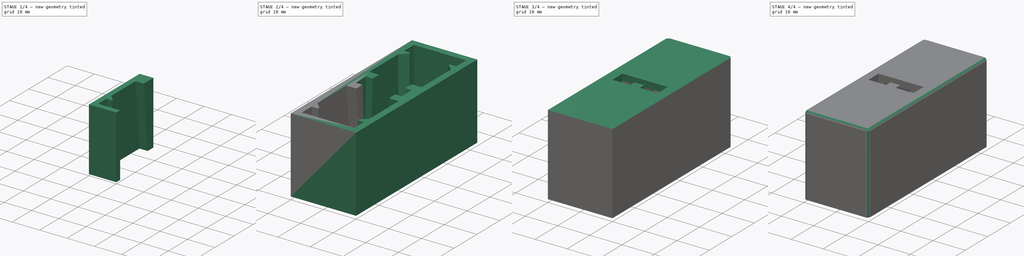
[diagram: build sequence overview — one tinted view per stage of 4, left to right]
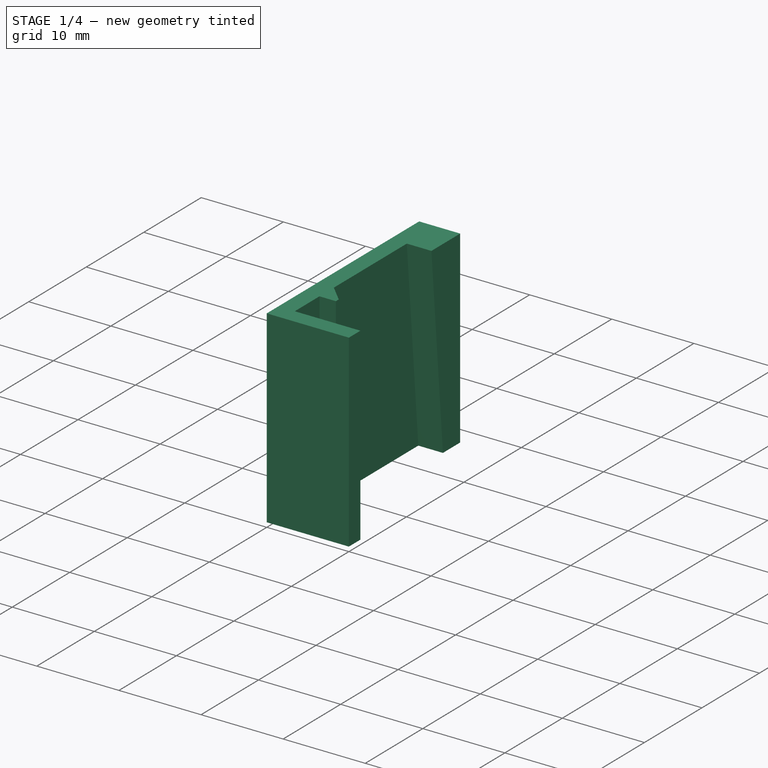
[diagram: stage 1 of 4 — iso view after this stage's code; geometry added in this stage tinted green]
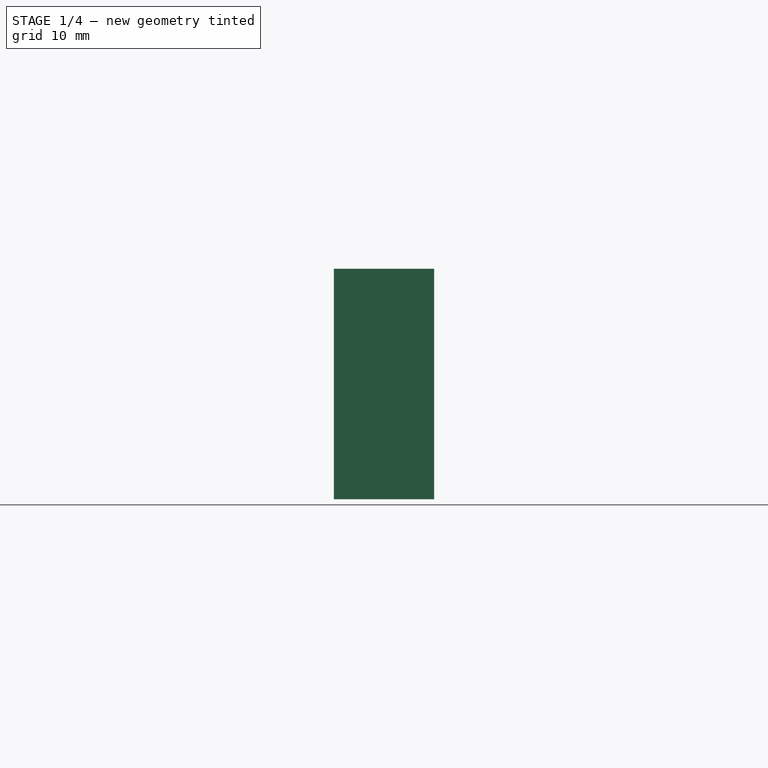
[diagram: stage 1 of 4 — front view after this stage's code; geometry added in this stage tinted green]
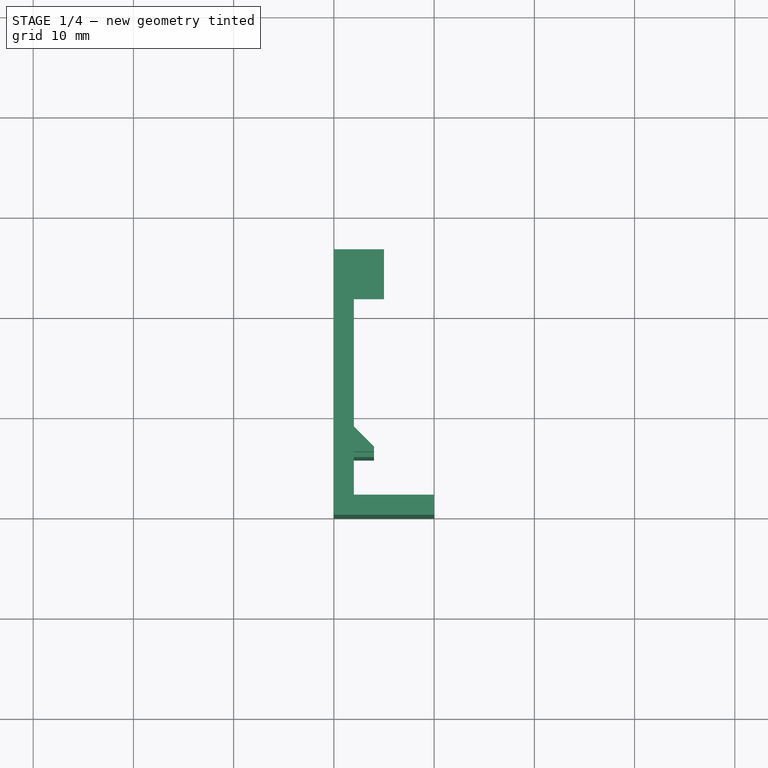
[diagram: stage 1 of 4 — top view after this stage's code; geometry added in this stage tinted green]
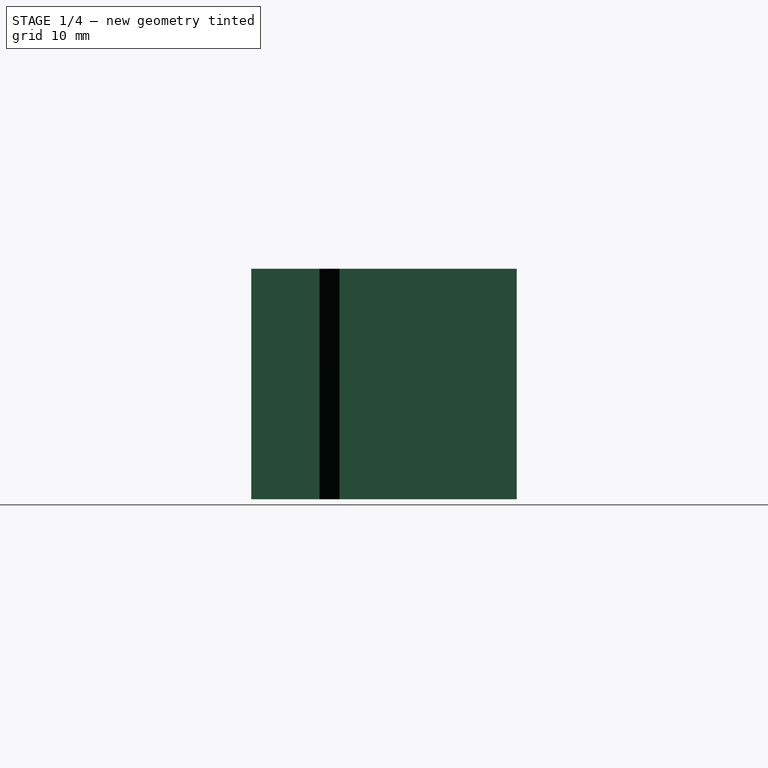
[diagram: stage 1 of 4 — right view after this stage's code; geometry added in this stage tinted green]
FCSTD DOCUMENT  (FreeCAD 1.0R39109 (Git))
Label: JumpModv4
License: All rights reserved
LicenseURL: http://en.wikipedia.org/wiki/All_rights_reserved
objects: Sketcher::SketchObject×6, PartDesign::Fillet×5, PartDesign::Pad×4, PartDesign::Pocket×2, PartDesign::Mirrored×2, PartDesign::Plane×1, PartDesign::Body×1
note: 51 computed .brp shape members not serialized (recipe doc carries the construction recipe); baked Part::Feature solids carry a one-line shape summary decoded from their .brp

FEATURE [Sketcher::SketchObject] Sketch
  ArcFitTolerance = 1e-06
  AttachmentSupport = -> [XY_Plane]
  FullyConstrained = true
  MakeInternals = false
  MapMode = 5
  sketch-geometry (10):
    g0: LineSegment StartX=0 StartY=0 StartZ=0 EndX=-10 EndY=0 EndZ=0
    g1: LineSegment StartX=-10 StartY=0 StartZ=0 EndX=-10 EndY=26.5 EndZ=0
    g2: LineSegment StartX=-8 StartY=8.81 StartZ=0 EndX=-6 EndY=6.81 EndZ=0
    g3: LineSegment StartX=-6 StartY=6.81 StartZ=0 EndX=-6 EndY=5.81 EndZ=0
    g4: LineSegment StartX=-6 StartY=5.81 StartZ=0 EndX=-8 EndY=5.81 EndZ=0
    g5: LineSegment StartX=-8 StartY=5.81 StartZ=0 EndX=-8 EndY=2.01 EndZ=0
    g6: LineSegment StartX=-8 StartY=2.01 StartZ=0 EndX=0 EndY=2.01 EndZ=0
    g7: LineSegment StartX=0 StartY=2.01 StartZ=0 EndX=0 EndY=0 EndZ=0
    g8: LineSegment StartX=-10 StartY=26.5 StartZ=0 EndX=-8 EndY=26.5 EndZ=0
    g9: LineSegment StartX=-8 StartY=8.81 StartZ=0 EndX=-8 EndY=26.5 EndZ=0
  constraints (29):
    c: Coincident(g0,g-1)
    c: PointOnObject(g0,g-1)
    c: Coincident(g1,g0)
    c: Vertical(g1)
    c: Coincident(g3,g2)
    c: Vertical(g3)
    c: Coincident(g4,g3)
    c: Coincident(g6,g5)
    c: DistanceY(g0,g1) = 26.5
    c: DistanceY(g5,g4) = 3.8
    c: DistanceY(g3,g3) = 1
    c: DistanceY(g4,g2) = 3
    c: DistanceX(g2,g2) = 2
    c: DistanceX(g0,g5) = 2
    c: Coincident(g4,g5)
    c: Parallel(g5,g1)
    c: Parallel(g6,g0)
    c: DistanceX(g0,g0) = 10
    c: Coincident(g7,g0)
    c: Coincident(g6,g7)
    c: PointOnObject(g6,g-2)
    c: Horizontal(g4)
    c: Horizontal(g8)
    c: Coincident(g8,g1)
    c: Distance(g8,g8) = 2
    c: Coincident(g9,g2)
    c: Coincident(g9,g8)
    c: Vertical(g9)
    c: DistanceY(g9,g9) = 17.69
FEATURE [PartDesign::Pad] Pad
  Direction = (0,0,1)
  Length = 23
  Length2 = 10
  Profile = -> Sketch
  ReferenceAxis = -> Sketch [N_Axis]
  Suppressed = false
  Type = 0
FEATURE [Sketcher::SketchObject] Sketch001
  ArcFitTolerance = 1e-06
  AttachmentSupport = -> [Pad]
  FullyConstrained = true
  MakeInternals = false
  MapMode = 5
  Placement = pos=(0,0,23) rot=(0,0,1;0rad)
  sketch-geometry (4):
    g0: LineSegment StartX=-6 StartY=5.81 StartZ=0 EndX=-6 EndY=6.31 EndZ=0
    g1: LineSegment StartX=-6 StartY=6.31 StartZ=0 EndX=-8 EndY=6.31 EndZ=0
    g2: LineSegment StartX=-8 StartY=6.31 StartZ=0 EndX=-8 EndY=5.81 EndZ=0
    g3: LineSegment StartX=-8 StartY=5.81 StartZ=0 EndX=-6 EndY=5.81 EndZ=0
  constraints (11):
    c: Coincident(g0,g1)
    c: Coincident(g1,g2)
    c: Coincident(g2,g3)
    c: Coincident(g3,g0)
    c: Vertical(g0)
    c: Vertical(g2)
    c: Horizontal(g1)
    c: Horizontal(g3)
    c: Coincident(g0,g-4)
    c: DistanceX(g3,g3) = 2
    c: Distance(g0,g0) = 0.5
FEATURE [PartDesign::Pocket] Pocket
  BaseFeature = -> Pad
  Direction = (0,0,-1)
  Length = 3
  Length2 = 5
  Profile = -> Sketch001
  ReferenceAxis = -> Sketch001 [N_Axis]
  Refine = true
  Suppressed = false
  Type = 0
FEATURE [Sketcher::SketchObject] Sketch002
  ArcFitTolerance = 1e-06
  AttachmentSupport = -> [Pocket]
  ExternalGeometry = -> [Pocket]
  FullyConstrained = true
  MakeInternals = false
  MapMode = 5
  Placement = pos=(-8,0,0) rot=(0.57735,0.57735,0.57735;2.0944rad)
  sketch-geometry (4):
    g0: LineSegment StartX=26.5 StartY=0 StartZ=0 EndX=23.5 EndY=0 EndZ=0
    g1: LineSegment StartX=23.5 StartY=0 StartZ=0 EndX=21.5 EndY=23 EndZ=0
    g2: LineSegment StartX=21.5 StartY=23 StartZ=0 EndX=26.5 EndY=23 EndZ=0
    g3: LineSegment StartX=26.5 StartY=23 StartZ=0 EndX=26.5 EndY=0 EndZ=0
  constraints (10):
    c: PointOnObject(g0,g-1)
    c: Coincident(g0,g1)
    c: Coincident(g1,g2)
    c: Horizontal(g2)
    c: Coincident(g2,g3)
    c: Coincident(g3,g0)
    c: Distance(g0,g0) = 3
    c: Distance(g2,g2) = 5
    c: Coincident(g0,g-3)
    c: Coincident(g2,g-3)
FEATURE [PartDesign::Pad] Pad001
  BaseFeature = -> Pocket
  Direction = (1,0,0)
  Length = 3
  Length2 = 10
  Profile = -> Sketch002
  ReferenceAxis = -> Sketch002 [N_Axis]
  Refine = true
  Suppressed = false
  Type = 0
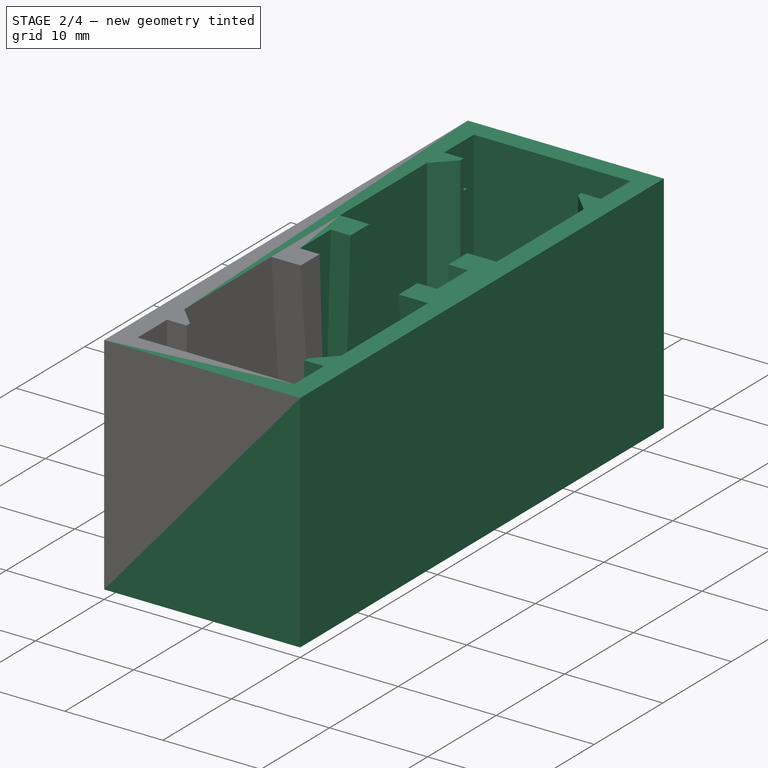
[diagram: stage 2 of 4 — iso view after this stage's code; geometry added in this stage tinted green]
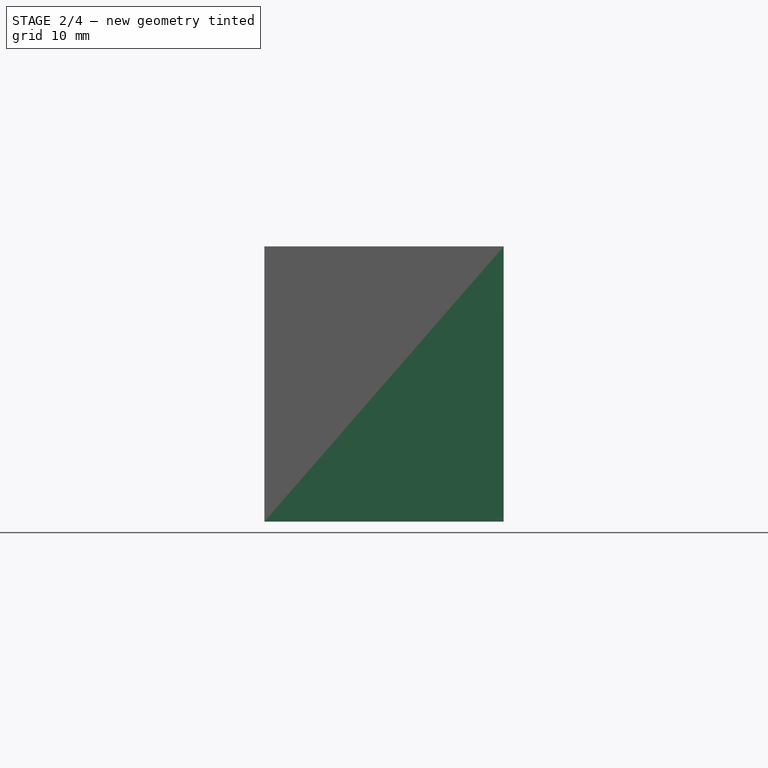
[diagram: stage 2 of 4 — front view after this stage's code; geometry added in this stage tinted green]
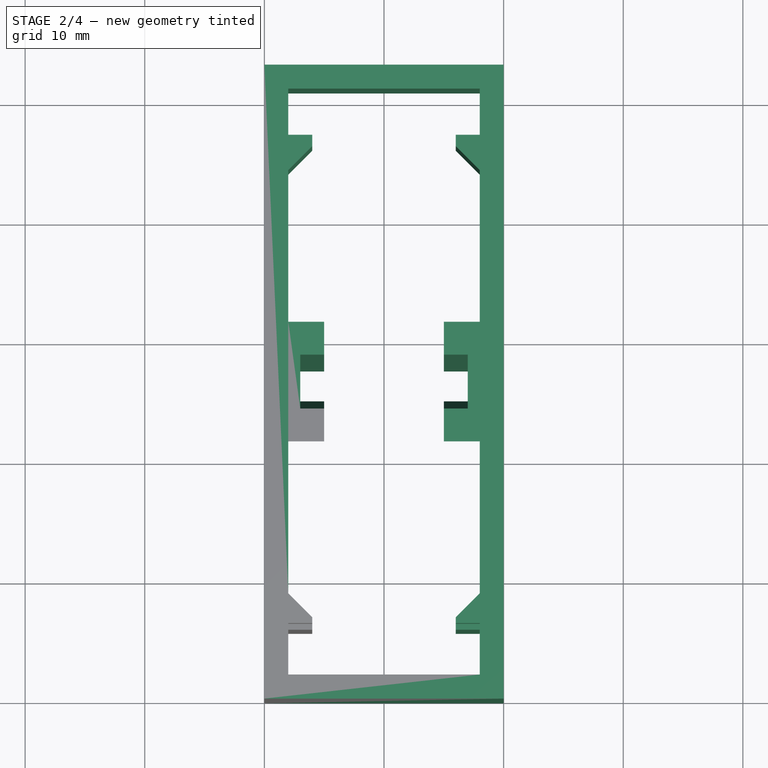
[diagram: stage 2 of 4 — top view after this stage's code; geometry added in this stage tinted green]
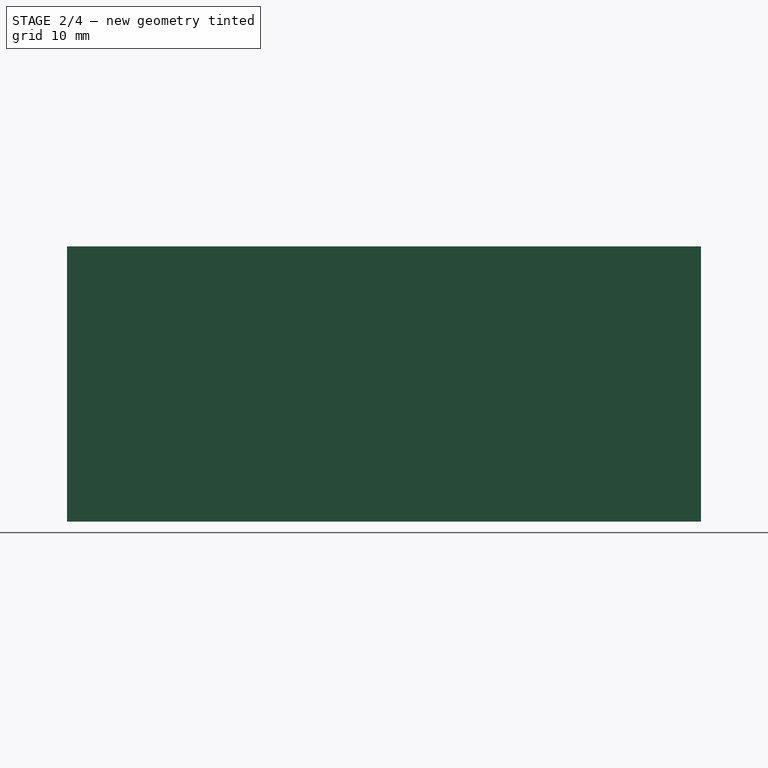
[diagram: stage 2 of 4 — right view after this stage's code; geometry added in this stage tinted green]
FEATURE [Sketcher::SketchObject] Sketch003
  ArcFitTolerance = 1e-06
  AttachmentSupport = -> [Pad001]
  ExternalGeometry = -> [Pad001]
  FullyConstrained = true
  MakeInternals = false
  MapMode = 5
  Placement = pos=(-5,0,0) rot=(0.57735,0.57735,0.57735;2.0944rad)
  sketch-geometry (4):
    g0: LineSegment StartX=26.5 StartY=0 StartZ=0 EndX=25.25 EndY=0 EndZ=0
    g1: LineSegment StartX=25.25 StartY=0 StartZ=0 EndX=24.25 EndY=23 EndZ=0
    g2: LineSegment StartX=24.25 StartY=23 StartZ=0 EndX=26.5 EndY=23 EndZ=0
    g3: LineSegment StartX=26.5 StartY=23 StartZ=0 EndX=26.5 EndY=0 EndZ=0
  constraints (10):
    c: Coincident(g-3,g0)
    c: PointOnObject(g0,g-1)
    c: Coincident(g0,g1)
    c: PointOnObject(g1,g-4)
    c: Coincident(g1,g2)
    c: Coincident(g2,g-4)
    c: Coincident(g2,g3)
    c: Coincident(g3,g0)
    c: Distance(g0,g0) = 1.25
    c: Distance(g2,g2) = 2.25
FEATURE [PartDesign::Pocket] Pocket001
  BaseFeature = -> Pad001
  Direction = (-1,0,0)
  Length = 2
  Length2 = 5
  Profile = -> Sketch003
  ReferenceAxis = -> Sketch003 [N_Axis]
  Refine = true
  Suppressed = false
  Type = 0
FEATURE [PartDesign::Mirrored] Mirrored
  BaseFeature = -> Pocket001
  MirrorPlane = -> YZ_Plane
  Originals = -> [Pocket001]
  Refine = true
  Suppressed = false
  TransformMode = 1
FEATURE [PartDesign::Plane] DatumPlane
  AttachmentSupport = -> [Mirrored]
  Length = 60
  MapMode = 5
  Placement = pos=(0,26.5,0) rot=(0,0.707107,0.707107;3.14159rad)
  ResizeMode = 0
  Width = 60
FEATURE [PartDesign::Mirrored] Mirrored001
  BaseFeature = -> Mirrored
  MirrorPlane = -> DatumPlane
  Originals = -> [Mirrored]
  Refine = true
  Suppressed = false
  TransformMode = 1
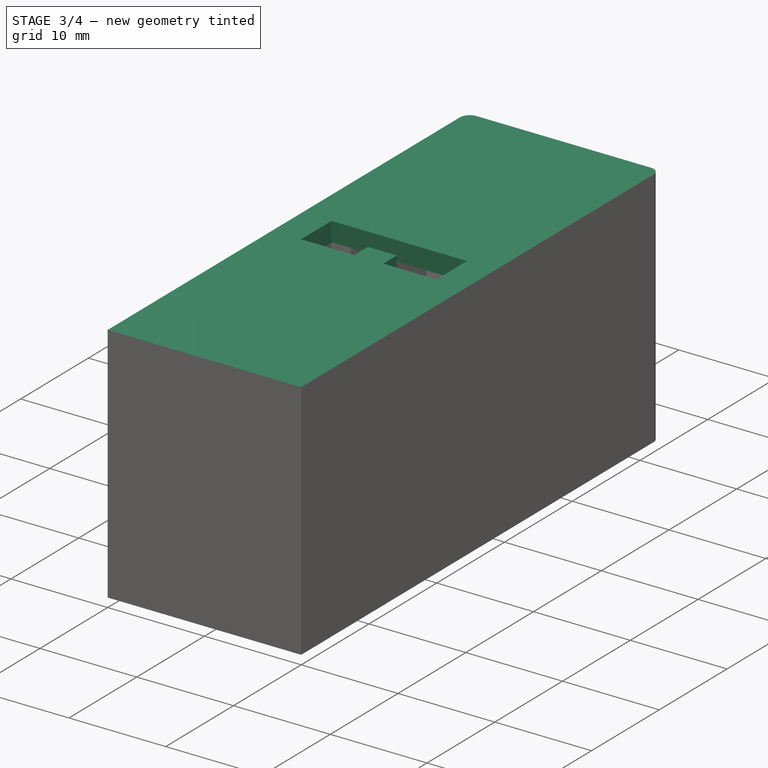
[diagram: stage 3 of 4 — iso view after this stage's code; geometry added in this stage tinted green]
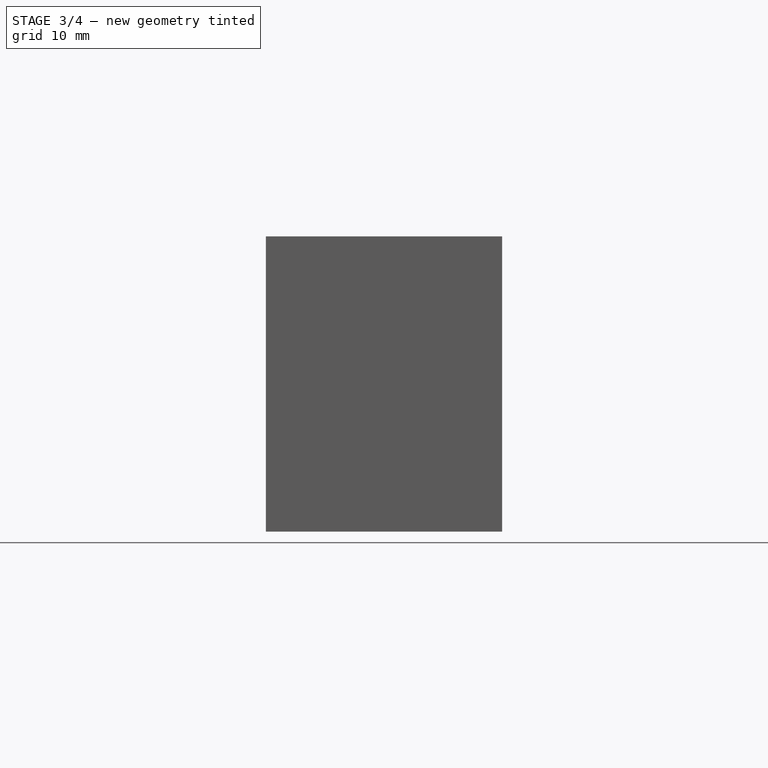
[diagram: stage 3 of 4 — front view after this stage's code; geometry added in this stage tinted green]
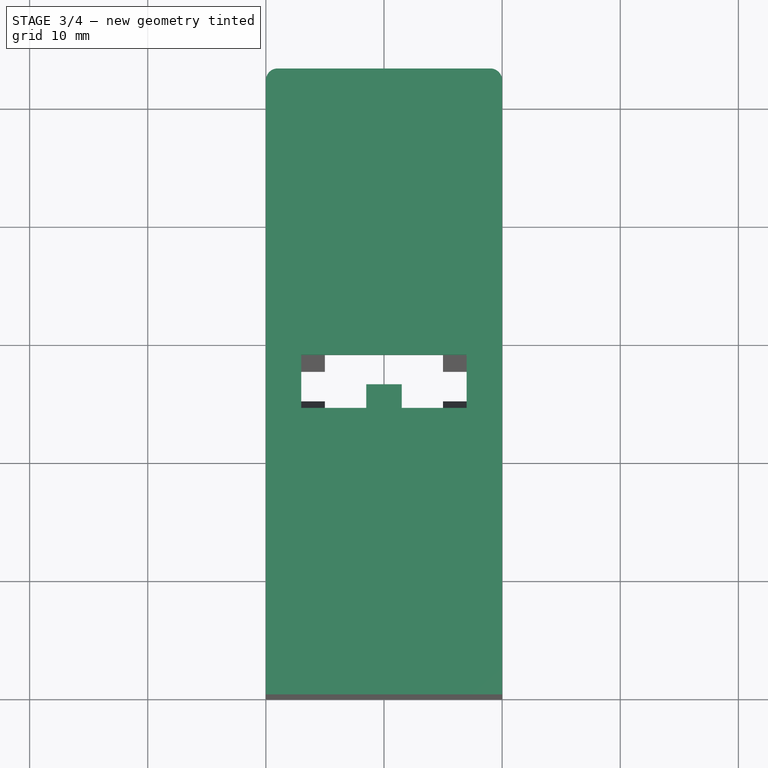
[diagram: stage 3 of 4 — top view after this stage's code; geometry added in this stage tinted green]
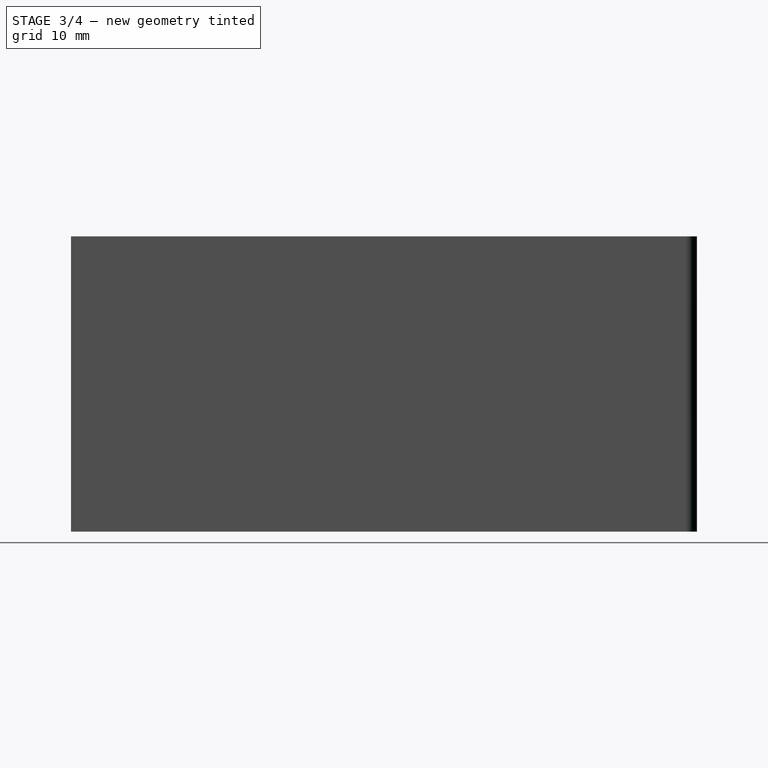
[diagram: stage 3 of 4 — right view after this stage's code; geometry added in this stage tinted green]
FEATURE [Sketcher::SketchObject] Sketch004
  ArcFitTolerance = 1e-06
  AttachmentSupport = -> [Mirrored001]
  FullyConstrained = true
  MakeInternals = false
  MapMode = 5
  Placement = pos=(0,0,23) rot=(0,0,1;0rad)
  sketch-geometry (8):
    g0: LineSegment StartX=-10 StartY=0 StartZ=0 EndX=10 EndY=0 EndZ=0
    g1: LineSegment StartX=10 StartY=0 StartZ=0 EndX=10 EndY=53 EndZ=0
    g2: LineSegment StartX=10 StartY=53 StartZ=0 EndX=-10 EndY=53 EndZ=0
    g3: LineSegment StartX=-10 StartY=53 StartZ=0 EndX=-10 EndY=0 EndZ=0
    g4: LineSegment StartX=-7 StartY=24.26 StartZ=0 EndX=7 EndY=24.26 EndZ=0
    g5: LineSegment StartX=7 StartY=24.26 StartZ=0 EndX=7 EndY=28.76 EndZ=0
    g6: LineSegment StartX=7 StartY=28.76 StartZ=0 EndX=-7 EndY=28.76 EndZ=0
    g7: LineSegment StartX=-7 StartY=28.76 StartZ=0 EndX=-7 EndY=24.26 EndZ=0
  constraints (22):
    c: Coincident(g0,g1)
    c: Coincident(g1,g2)
    c: Coincident(g2,g3)
    c: Coincident(g3,g0)
    c: Horizontal(g2)
    c: Vertical(g1)
    c: Vertical(g3)
    c: PointOnObject(g0,g-1)
    c: DistanceY(g3,g3) = 53
    c: DistanceX(g2,g2) = 20
    c: Symmetric(g0,g0,g-2)
    c: Coincident(g4,g5)
    c: Coincident(g5,g6)
    c: Coincident(g6,g7)
    c: Coincident(g7,g4)
    c: Horizontal(g4)
    c: Vertical(g5)
    c: Vertical(g7)
    c: Distance(g7,g7) = 4.5
    c: Distance(g4,g4) = 14
    c: Distance(g0,g4) = 24.26
    c: Symmetric(g6,g5,g-2)
FEATURE [PartDesign::Pad] Pad002
  BaseFeature = -> Mirrored001
  Direction = (0,0,1)
  Length = 2
  Length2 = 10
  Profile = -> Sketch004
  ReferenceAxis = -> Sketch004 [N_Axis]
  Refine = true
  Suppressed = false
  Type = 0
FEATURE [Sketcher::SketchObject] Sketch005
  ArcFitTolerance = 1e-06
  AttachmentSupport = -> [Pad002]
  ExternalGeometry = -> [Pad002]
  FullyConstrained = true
  MakeInternals = false
  MapMode = 5
  Placement = pos=(0,0,25) rot=(0,0,1;0rad)
  sketch-geometry (4):
    g0: LineSegment StartX=-1.5 StartY=26.26 StartZ=0 EndX=-1.5 EndY=21.26 EndZ=0
    g1: LineSegment StartX=-1.5 StartY=21.26 StartZ=0 EndX=1.5 EndY=21.26 EndZ=0
    g2: LineSegment StartX=1.5 StartY=21.26 StartZ=0 EndX=1.5 EndY=26.26 EndZ=0
    g3: LineSegment StartX=1.5 StartY=26.26 StartZ=0 EndX=-1.5 EndY=26.26 EndZ=0
  constraints (11):
    c: Coincident(g0,g1)
    c: Coincident(g1,g2)
    c: Coincident(g2,g3)
    c: Coincident(g3,g0)
    c: Vertical(g0)
    c: Vertical(g2)
    c: Horizontal(g1)
    c: Distance(g2,g2) = 5
    c: Distance(g3,g3) = 3
    c: Symmetric(g0,g2,g-2)
    c: Distance(g-3,g3) = 2
FEATURE [PartDesign::Pad] Pad003
  BaseFeature = -> Pad002
  Direction = (0,0,1)
  Length = 3
  Length2 = 10
  Profile = -> Sketch005
  ReferenceAxis = -> Sketch005 [N_Axis]
  Refine = true
  Reversed = true
  Suppressed = false
  Type = 0
FEATURE [PartDesign::Fillet] Fillet
  Base = -> Pad003 [Edge45]
  BaseFeature = -> Pad003
  Radius = 1
  Refine = true
  SupportTransform = false
  Suppressed = false
  UseAllEdges = false
FEATURE [PartDesign::Fillet] Fillet001
  Base = -> Fillet [Edge50]
  BaseFeature = -> Fillet
  Radius = 1
  Refine = true
  SupportTransform = false
  Suppressed = false
  UseAllEdges = false
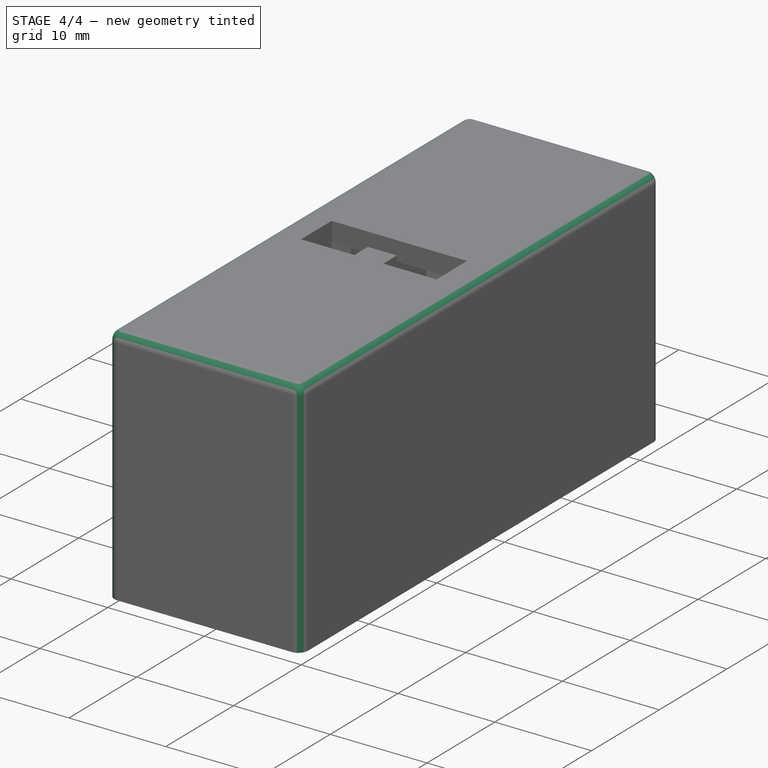
[diagram: stage 4 of 4 — iso view after this stage's code; geometry added in this stage tinted green]
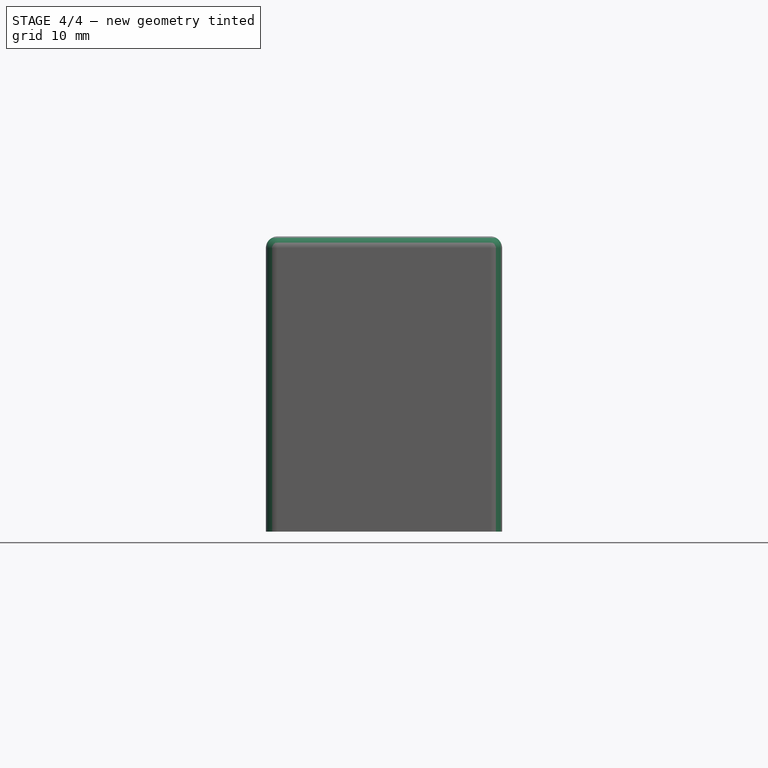
[diagram: stage 4 of 4 — front view after this stage's code; geometry added in this stage tinted green]
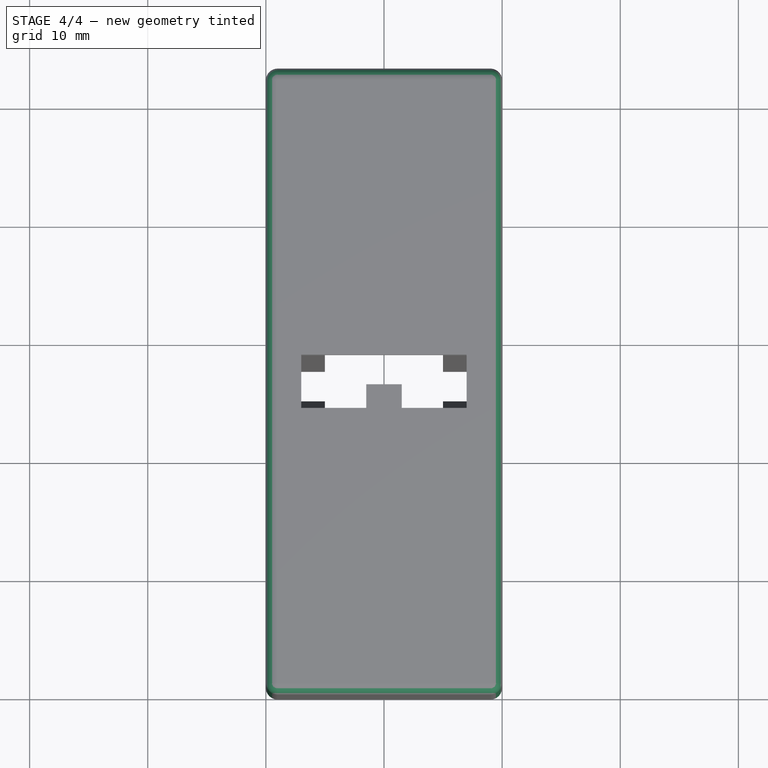
[diagram: stage 4 of 4 — top view after this stage's code; geometry added in this stage tinted green]
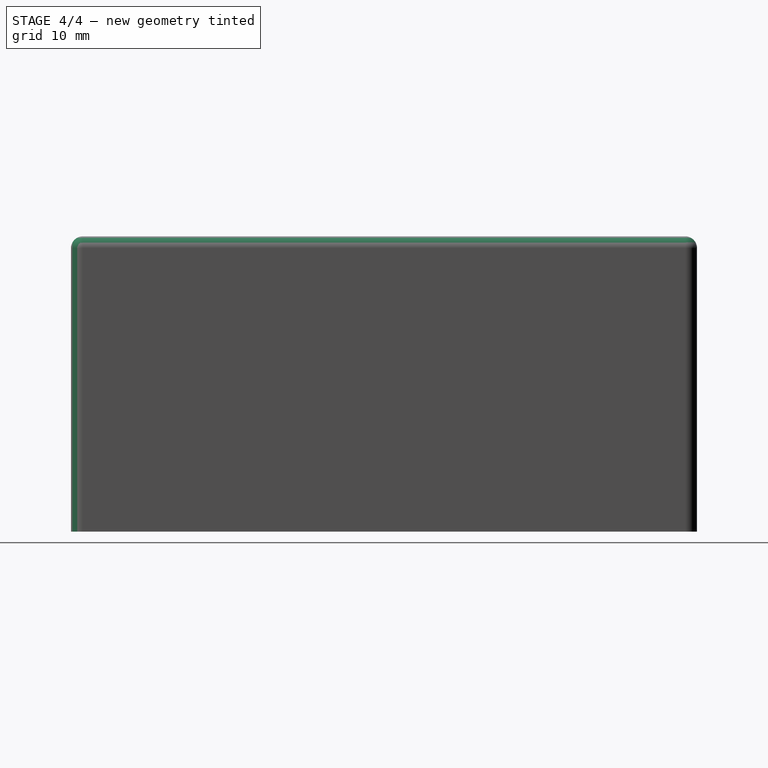
[diagram: stage 4 of 4 — right view after this stage's code; geometry added in this stage tinted green]
FEATURE [PartDesign::Fillet] Fillet002
  Base = -> Fillet001 [Edge50]
  BaseFeature = -> Fillet001
  Radius = 1
  Refine = true
  SupportTransform = false
  Suppressed = false
  UseAllEdges = false
FEATURE [PartDesign::Fillet] Fillet003
  Base = -> Fillet002 [Edge51]
  BaseFeature = -> Fillet002
  Radius = 1
  Refine = true
  SupportTransform = false
  Suppressed = false
  UseAllEdges = false
FEATURE [PartDesign::Fillet] Fillet004
  Base = -> Fillet003 [Edge55]
  BaseFeature = -> Fillet003
  Radius = 1
  Refine = true
  SupportTransform = false
  Suppressed = false
  UseAllEdges = false
FEATURE [PartDesign::Body] Body
  AllowCompound = false
  Group = -> [Sketch,Pad,Sketch001,Pocket,Sketch002,Pad001,Sketch003,Pocket001,Mirrored,DatumPlane,Mirrored001,Sketch004,Pad002,Sketch005,Pad003,Fillet,Fillet001,Fillet002,Fillet003,Fillet004]
  Origin = -> Origin
  Tip = -> Fillet004
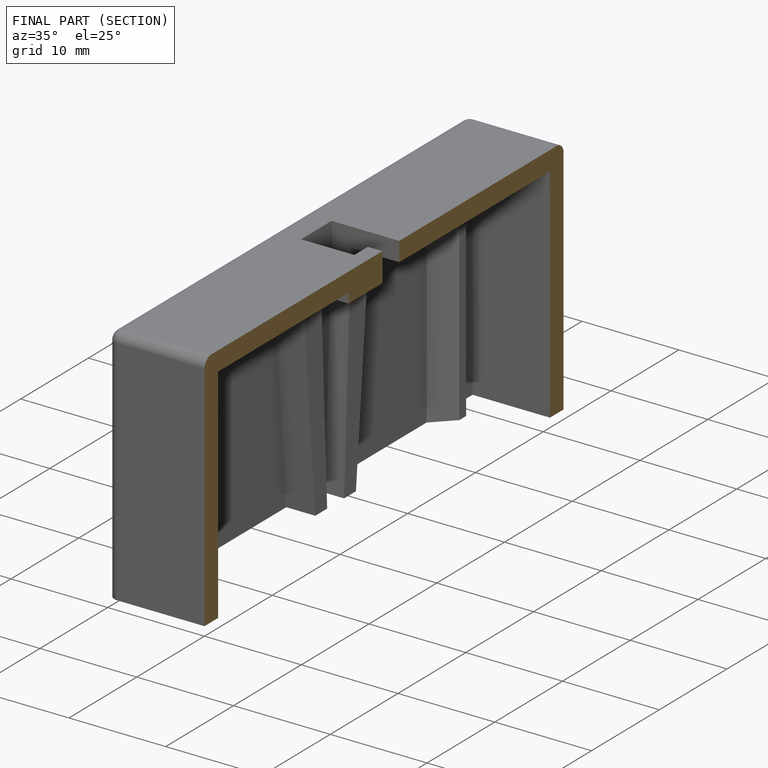
[diagram: finished part — half-section view (interior)]
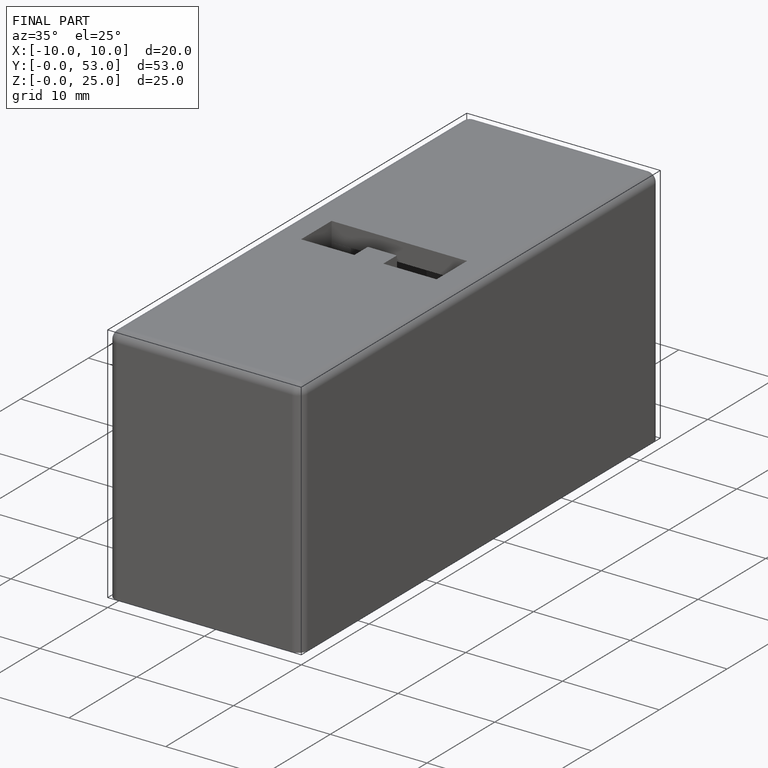
[diagram: finished part — iso view with bounding-box wireframe]
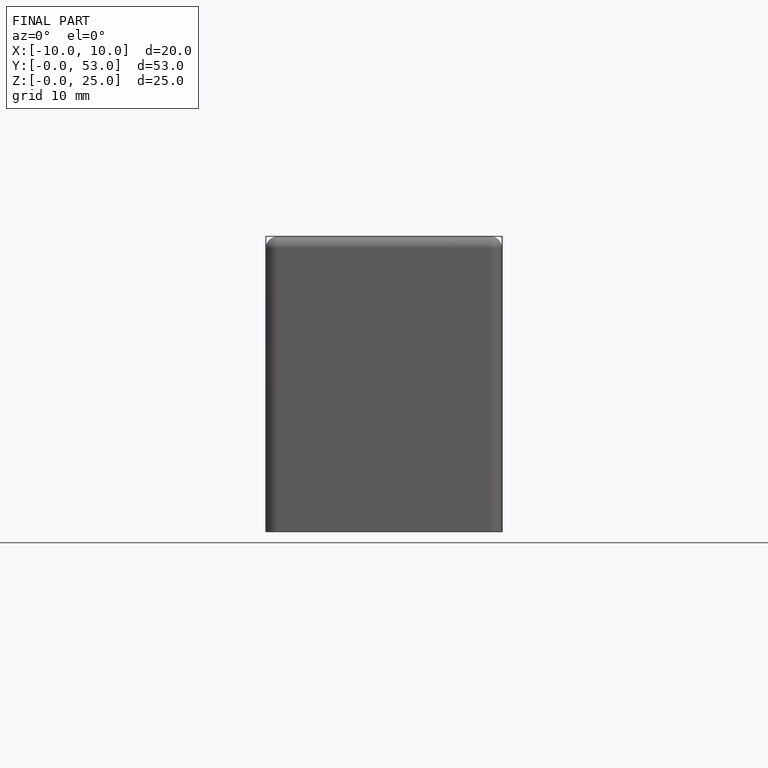
[diagram: finished part — front view with bounding-box wireframe]
